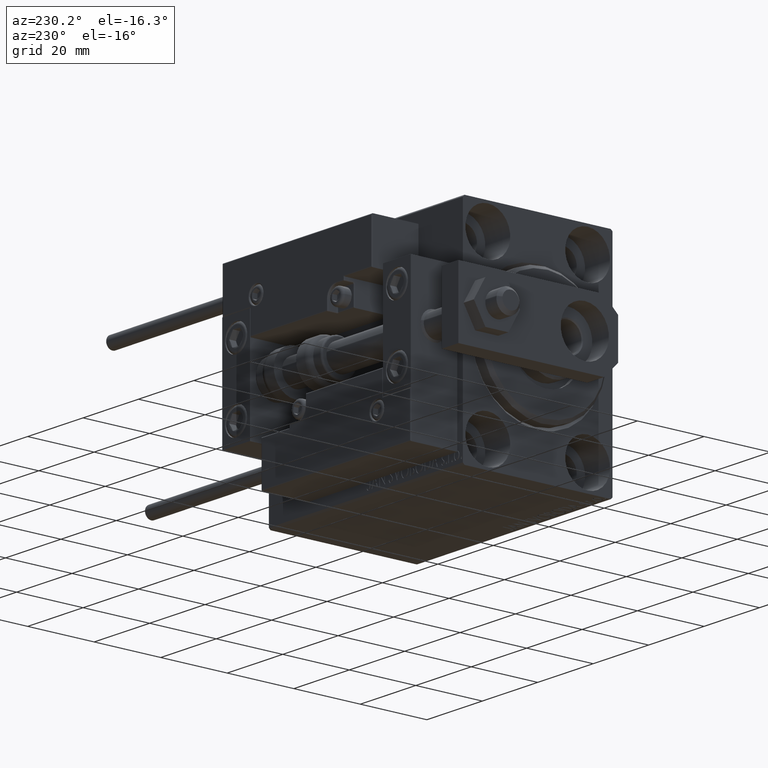
[diagram: clean part render]
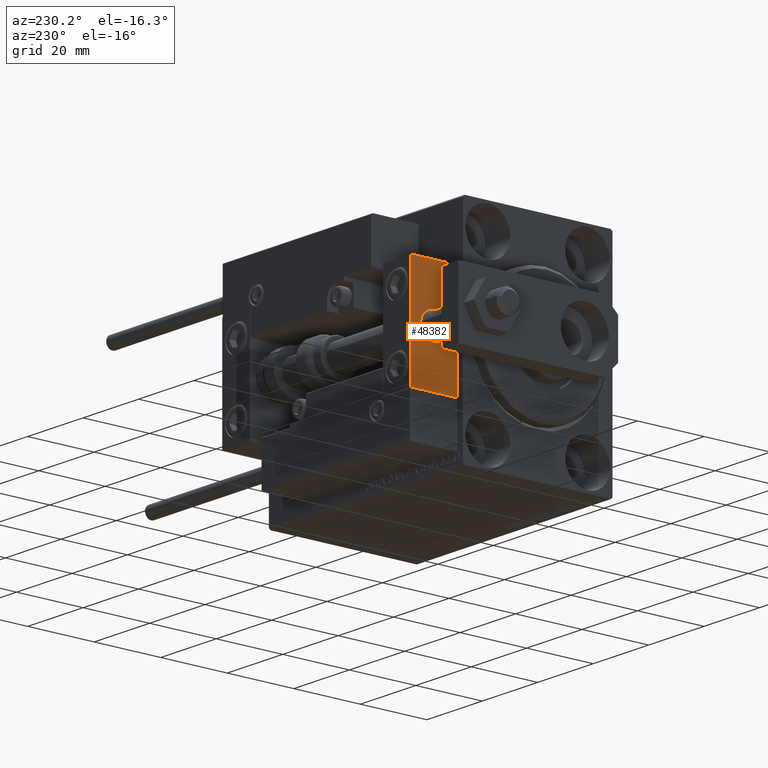
[diagram: same view with one face highlighted and labeled with its STEP entity id]
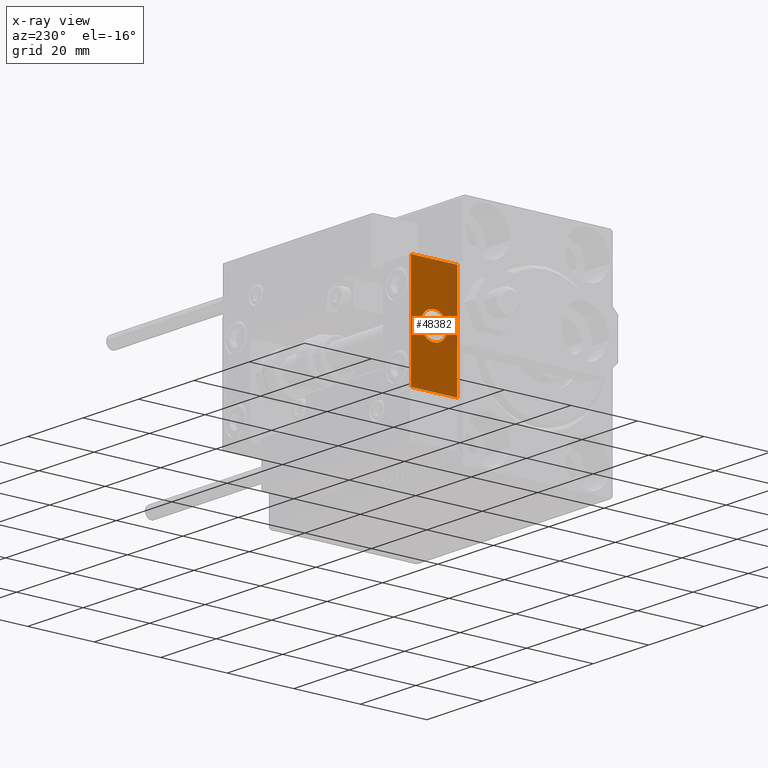
[diagram: x-ray of the same camera — body ghosted, the highlighted face saturated]
A machine part, auxiliary view. The second image highlights one B-rep face of the part: STEP entity #48382.
The next image is the same camera in x-ray: the body ghosted, the highlighted face saturated — about 16% of this face is hidden behind the body in this view.
In plain terms, the highlighted planar face has unit normal (1, 0, -0).
Its self-contained STEP definition (entity closure, byte-faithful):
#107 = DIRECTION ( 'NONE',  ( 0.000000000000000000, -1.000000000000000000, 0.000000000000000000 ) ) ;
#3105 = VECTOR ( 'NONE', #18984, 1000.000000000000000 ) ;
#3150 = ORIENTED_EDGE ( 'NONE', *, *, #20607, .F. ) ;
#4928 = VERTEX_POINT ( 'NONE', #22313 ) ;
#6571 = LINE ( 'NONE', #38003, #3105 ) ;
#7377 = FACE_OUTER_BOUND ( 'NONE', #44655, .T. ) ;
#8009 = CARTESIAN_POINT ( 'NONE',  ( 10.00000000000000000, -7.000000000000000000, -16.00000000000000711 ) ) ;
#9991 = DIRECTION ( 'NONE',  ( 0.000000000000000000, 0.000000000000000000, 1.000000000000000000 ) ) ;
#10604 = AXIS2_PLACEMENT_3D ( 'NONE', #29716, #41851, #10928 ) ;
#10928 = DIRECTION ( 'NONE',  ( -0.000000000000000000, 0.000000000000000000, 1.000000000000000000 ) ) ;
#11092 = EDGE_LOOP ( 'NONE', ( #39967, #18813 ) ) ;
#11099 = ORIENTED_EDGE ( 'NONE', *, *, #14220, .T. ) ;
#12241 = DIRECTION ( 'NONE',  ( 0.000000000000000000, 0.000000000000000000, 1.000000000000000000 ) ) ;
#12524 = LINE ( 'NONE', #47233, #21013 ) ;
#14032 = CARTESIAN_POINT ( 'NONE',  ( 10.00000000000000000, 4.898587196589412829E-16, -4.000000000000000000 ) ) ;
#14220 = EDGE_CURVE ( 'NONE', #22084, #32878, #30458, .T. ) ;
#14731 = DIRECTION ( 'NONE',  ( 0.000000000000000000, 0.000000000000000000, -1.000000000000000000 ) ) ;
#17030 = AXIS2_PLACEMENT_3D ( 'NONE', #28218, #24405, #12241 ) ;
#18260 = CARTESIAN_POINT ( 'NONE',  ( 10.00000000000000000, 7.000000000000000000, -16.00000000000000711 ) ) ;
#18454 = EDGE_CURVE ( 'NONE', #40110, #22084, #12524, .T. ) ;
#18515 = DIRECTION ( 'NONE',  ( 0.000000000000000000, -1.000000000000000000, 0.000000000000000000 ) ) ;
#18813 = ORIENTED_EDGE ( 'NONE', *, *, #24651, .T. ) ;
#18984 = DIRECTION ( 'NONE',  ( 0.000000000000000000, 0.000000000000000000, -1.000000000000000000 ) ) ;
#19246 = VECTOR ( 'NONE', #14731, 1000.000000000000000 ) ;
#20279 = CIRCLE ( 'NONE', #17030, 4.000000000000000000 ) ;
#20607 = EDGE_CURVE ( 'NONE', #25247, #32878, #26631, .T. ) ;
#21013 = VECTOR ( 'NONE', #107, 1000.000000000000000 ) ;
#21914 = AXIS2_PLACEMENT_3D ( 'NONE', #36858, #44457, #9991 ) ;
#21974 = ORIENTED_EDGE ( 'NONE', *, *, #18454, .T. ) ;
#22084 = VERTEX_POINT ( 'NONE', #37661 ) ;
#22313 = CARTESIAN_POINT ( 'NONE',  ( 10.00000000000000000, 0.000000000000000000, 4.000000000000000000 ) ) ;
#22580 = CARTESIAN_POINT ( 'NONE',  ( 10.00000000000000000, -7.000000000000000000, 15.99999999999999289 ) ) ;
#24405 = DIRECTION ( 'NONE',  ( -1.000000000000000000, 0.000000000000000000, 0.000000000000000000 ) ) ;
#24651 = EDGE_CURVE ( 'NONE', #27489, #4928, #38099, .T. ) ;
#24826 = EDGE_CURVE ( 'NONE', #4928, #27489, #20279, .T. ) ;
#25247 = VERTEX_POINT ( 'NONE', #30124 ) ;
#26631 = LINE ( 'NONE', #18260, #28272 ) ;
#27489 = VERTEX_POINT ( 'NONE', #14032 ) ;
#28218 = CARTESIAN_POINT ( 'NONE',  ( 10.00000000000000000, 0.000000000000000000, 0.000000000000000000 ) ) ;
#28272 = VECTOR ( 'NONE', #18515, 1000.000000000000000 ) ;
#29716 = CARTESIAN_POINT ( 'NONE',  ( 10.00000000000000000, 0.000000000000000000, 0.000000000000000000 ) ) ;
#30124 = CARTESIAN_POINT ( 'NONE',  ( 10.00000000000000000, 7.000000000000000000, -16.00000000000000711 ) ) ;
#30458 = LINE ( 'NONE', #22580, #19246 ) ;
#31598 = ORIENTED_EDGE ( 'NONE', *, *, #38330, .F. ) ;
#32878 = VERTEX_POINT ( 'NONE', #8009 ) ;
#33761 = PLANE ( 'NONE',  #10604 ) ;
#36858 = CARTESIAN_POINT ( 'NONE',  ( 10.00000000000000000, 0.000000000000000000, 0.000000000000000000 ) ) ;
#37550 = FACE_BOUND ( 'NONE', #11092, .T. ) ;
#37661 = CARTESIAN_POINT ( 'NONE',  ( 10.00000000000000000, -7.000000000000000000, 15.99999999999999289 ) ) ;
#38003 = CARTESIAN_POINT ( 'NONE',  ( 10.00000000000000000, 7.000000000000000000, 15.99999999999999289 ) ) ;
#38099 = CIRCLE ( 'NONE', #21914, 4.000000000000000000 ) ;
#38330 = EDGE_CURVE ( 'NONE', #40110, #25247, #6571, .T. ) ;
#39967 = ORIENTED_EDGE ( 'NONE', *, *, #24826, .T. ) ;
#40110 = VERTEX_POINT ( 'NONE', #47531 ) ;
#41851 = DIRECTION ( 'NONE',  ( -1.000000000000000000, 0.000000000000000000, -0.000000000000000000 ) ) ;
#44457 = DIRECTION ( 'NONE',  ( -1.000000000000000000, 0.000000000000000000, 0.000000000000000000 ) ) ;
#44655 = EDGE_LOOP ( 'NONE', ( #11099, #3150, #31598, #21974 ) ) ;
#47233 = CARTESIAN_POINT ( 'NONE',  ( 10.00000000000000000, 7.000000000000000000, 15.99999999999999289 ) ) ;
#47531 = CARTESIAN_POINT ( 'NONE',  ( 10.00000000000000000, 7.000000000000000000, 15.99999999999999289 ) ) ;
#48382 = ADVANCED_FACE ( 'NONE', ( #37550, #7377 ), #33761, .F. ) ;